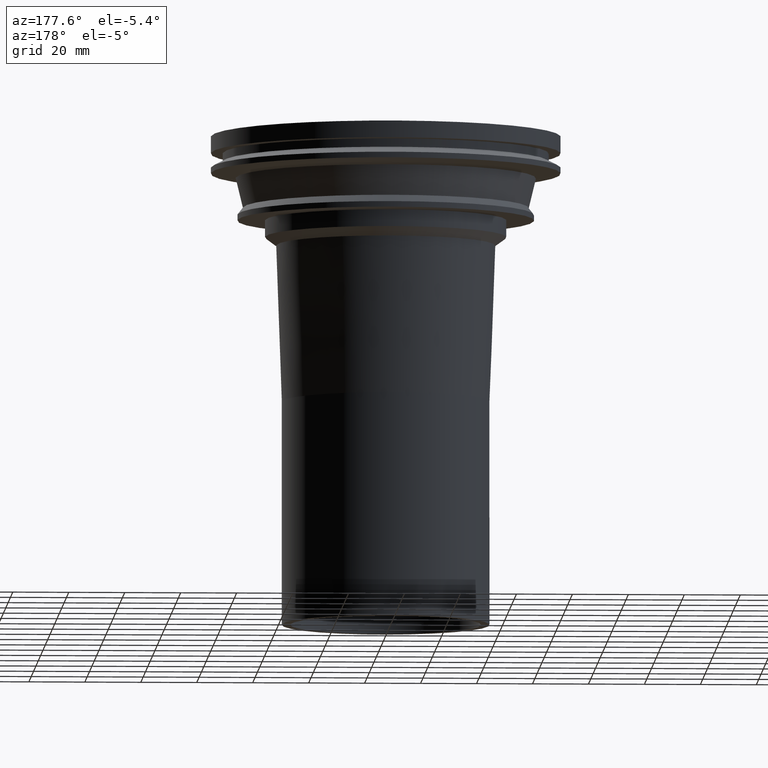
[diagram: clean part render]
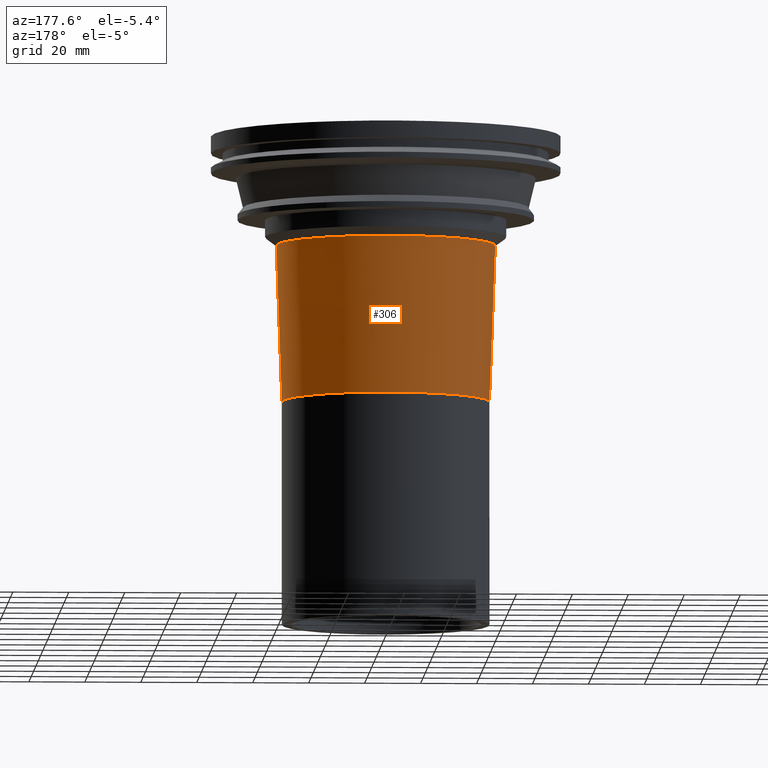
[diagram: same view with one face highlighted and labeled with its STEP entity id]
A machine part, auxiliary view. The second image highlights one B-rep face of the part: STEP entity #306.
In plain terms, the highlighted conical surface has half-angle 2.046 deg.
Its self-contained STEP definition (entity closure, byte-faithful):
#28=CONICAL_SURFACE('',#350,39.143539336086,0.0357094364958043);
#40=CIRCLE('',#351,37.143);
#41=CIRCLE('',#352,39.143539336086);
#71=ORIENTED_EDGE('',*,*,#128,.F.);
#72=ORIENTED_EDGE('',*,*,#129,.T.);
#73=ORIENTED_EDGE('',*,*,#130,.F.);
#128=EDGE_CURVE('',#157,#158,#182,.T.);
#129=EDGE_CURVE('',#157,#158,#40,.T.);
#130=EDGE_CURVE('',#159,#159,#41,.T.);
#157=VERTEX_POINT('',#595);
#158=VERTEX_POINT('',#596);
#159=VERTEX_POINT('',#599);
#182=B_SPLINE_CURVE_WITH_KNOTS('',3,(#568,#569,#570,#571,#572,#573,#574,
#575,#576,#577,#578,#579,#580,#581,#582,#583,#584,#585,#586,#587,#588,#589,
#590,#591,#592,#593,#594),.UNSPECIFIED.,.F.,.F.,(4,1,1,1,1,1,1,1,1,1,1,
1,1,1,1,1,1,1,1,1,1,1,1,1,4),(2.06801865521496E-7,0.00624696653384797,0.0093703463998392,
0.0124937262658304,0.0156171061318216,0.0187404859978129,0.0249872457297953,
0.0312340054617778,0.034357385327769,0.0374807651937602,0.0437275249257427,
0.0468509047917339,0.0499742846577251,0.0562210443897076,0.0593444242556988,
0.06246780412169,0.0655911839876813,0.0687145638536725,0.0749613235856549,
0.0812080833176374,0.0843314631836286,0.0874548430496198,0.0905782229156111,
0.0937016027816023,0.0999483625135847),.UNSPECIFIED.);
#190=EDGE_LOOP('',(#71,#72));
#191=EDGE_LOOP('',(#73));
#244=FACE_BOUND('',#190,.T.);
#245=FACE_BOUND('',#191,.T.);
#306=ADVANCED_FACE('',(#244,#245),#28,.T.);
#350=AXIS2_PLACEMENT_3D('',#567,#412,#413);
#351=AXIS2_PLACEMENT_3D('',#597,#414,#415);
#352=AXIS2_PLACEMENT_3D('',#598,#416,#417);
#412=DIRECTION('',(0.,0.,1.));
#413=DIRECTION('',(1.,0.,0.));
#414=DIRECTION('',(0.,0.,1.));
#415=DIRECTION('',(1.,0.,0.));
#416=DIRECTION('',(0.,0.,1.));
#417=DIRECTION('',(1.,0.,0.));
#567=CARTESIAN_POINT('',(0.,0.,-39.001106667134));
#568=CARTESIAN_POINT('',(25.6904651573303,-26.8254067816315,-95.));
#569=CARTESIAN_POINT('',(26.1999729047202,-26.4370666173166,-92.9862321489676));
#570=CARTESIAN_POINT('',(26.6104444852898,-26.1734055618047,-89.881965157758));
#571=CARTESIAN_POINT('',(26.4099912093924,-26.5910270662561,-85.6734301801219));
#572=CARTESIAN_POINT('',(25.9075346884643,-27.2342930218221,-82.6564040564891));
#573=CARTESIAN_POINT('',(25.0675820350629,-28.15450007423,-79.7352893123945));
#574=CARTESIAN_POINT('',(23.5804067240024,-29.6014011713355,-76.1397994734742));
#575=CARTESIAN_POINT('',(21.0188353639803,-31.7145350748207,-72.0242774024909));
#576=CARTESIAN_POINT('',(17.6829584700035,-33.808790294841,-68.5951749656889));
#577=CARTESIAN_POINT('',(14.5205492834707,-35.3333773780706,-66.267661833032));
#578=CARTESIAN_POINT('',(11.1197619401677,-36.6715957394384,-64.3019278975711));
#579=CARTESIAN_POINT('',(7.24352793110983,-37.6954147149056,-62.8650653240721));
#580=CARTESIAN_POINT('',(3.21530689486279,-38.2240213057519,-62.1343440906169));
#581=CARTESIAN_POINT('',(-1.00384105662409,-38.4154619160602,-61.8718886240259));
#582=CARTESIAN_POINT('',(-5.14789646324063,-38.0580931545751,-62.3601441585486));
#583=CARTESIAN_POINT('',(-9.11506785587166,-37.2043897029565,-63.5544097401954));
#584=CARTESIAN_POINT('',(-11.8791055781887,-36.3680789694842,-64.7481794946845));
#585=CARTESIAN_POINT('',(-14.4871350254885,-35.3487966782311,-66.2447812647709));
#586=CARTESIAN_POINT('',(-17.6241452900366,-33.840591125357,-68.5444268957074));
#587=CARTESIAN_POINT('',(-21.0119884821229,-31.7203736395377,-72.0173404312673));
#588=CARTESIAN_POINT('',(-23.5425066521233,-29.6355597876153,-76.0618477142298));
#589=CARTESIAN_POINT('',(-25.0631312590853,-28.1594007004825,-79.7226470476981));
#590=CARTESIAN_POINT('',(-25.8922115937408,-27.2520261605886,-82.5892807288321));
#591=CARTESIAN_POINT('',(-26.4087705395425,-26.5931728650041,-85.6588289619577));
#592=CARTESIAN_POINT('',(-26.6119114743573,-26.175348707433,-89.8122434609121));
#593=CARTESIAN_POINT('',(-26.200810830348,-26.4364279613243,-92.982920349099));
#594=CARTESIAN_POINT('',(-25.6904651573302,-26.8254067816315,-95.));
#595=CARTESIAN_POINT('',(25.6904651573302,-26.8254067816315,-95.));
#596=CARTESIAN_POINT('',(-25.6904651573302,-26.8254067816315,-95.));
#597=CARTESIAN_POINT('',(0.,0.,-95.));
#598=CARTESIAN_POINT('',(0.,0.,-39.001106667134));
#599=CARTESIAN_POINT('',(39.143539336086,0.,-39.001106667134));